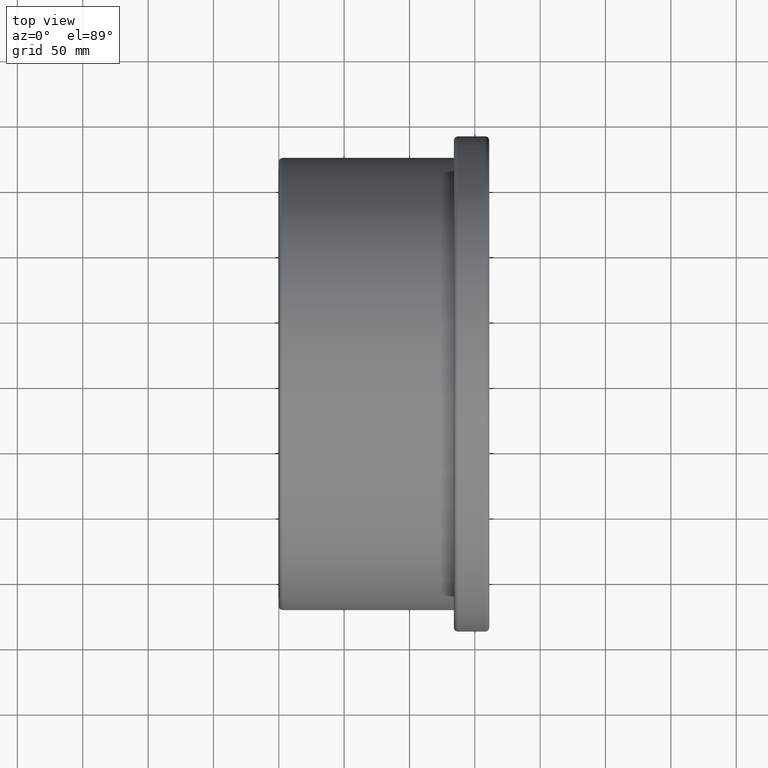
[diagram: clean part render]
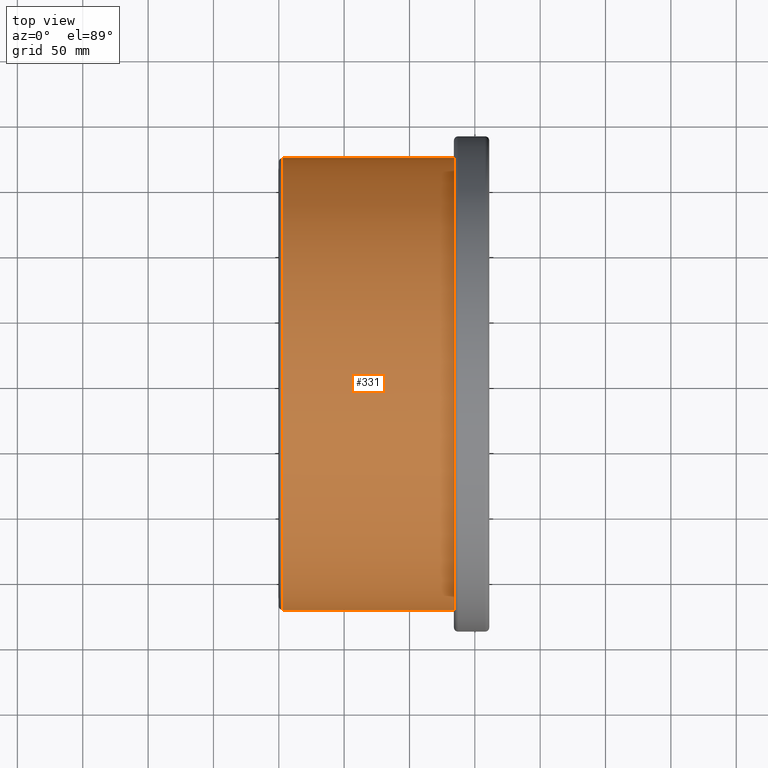
[diagram: same view with one face highlighted and labeled with its STEP entity id]
A machine part, top view. The second image highlights one B-rep face of the part: STEP entity #331.
In plain terms, the highlighted cylindrical surface (bore or boss wall) has radius 173 mm, axis along (-1, 0, 0).
Its self-contained STEP definition (entity closure, byte-faithful):
#23=CYLINDRICAL_SURFACE('',#379,173.);
#64=FACE_BOUND('',#142,.T.);
#92=FACE_OUTER_BOUND('',#141,.T.);
#141=EDGE_LOOP('',(#291));
#142=EDGE_LOOP('',(#292));
#166=CIRCLE('',#376,173.);
#167=CIRCLE('',#378,173.);
#194=VERTEX_POINT('',#2804);
#195=VERTEX_POINT('',#2807);
#227=EDGE_CURVE('',#194,#194,#166,.T.);
#228=EDGE_CURVE('',#195,#195,#167,.T.);
#291=ORIENTED_EDGE('',*,*,#227,.T.);
#292=ORIENTED_EDGE('',*,*,#228,.F.);
#331=ADVANCED_FACE('',(#92,#64),#23,.T.);
#376=AXIS2_PLACEMENT_3D('',#2805,#465,#466);
#378=AXIS2_PLACEMENT_3D('',#2808,#469,#470);
#379=AXIS2_PLACEMENT_3D('',#2809,#471,#472);
#465=DIRECTION('center_axis',(-1.,0.,0.));
#466=DIRECTION('ref_axis',(0.,0.,1.));
#469=DIRECTION('center_axis',(-1.,0.,0.));
#470=DIRECTION('ref_axis',(0.,1.,6.12323399573677E-17));
#471=DIRECTION('center_axis',(-1.,0.,0.));
#472=DIRECTION('ref_axis',(0.,-1.,0.));
#2804=CARTESIAN_POINT('',(134.,-173.,0.));
#2805=CARTESIAN_POINT('Origin',(134.,0.,0.));
#2807=CARTESIAN_POINT('',(3.15,-173.,1.05931948126246E-14));
#2808=CARTESIAN_POINT('Origin',(3.15,0.,0.));
#2809=CARTESIAN_POINT('Origin',(67.,0.,0.));